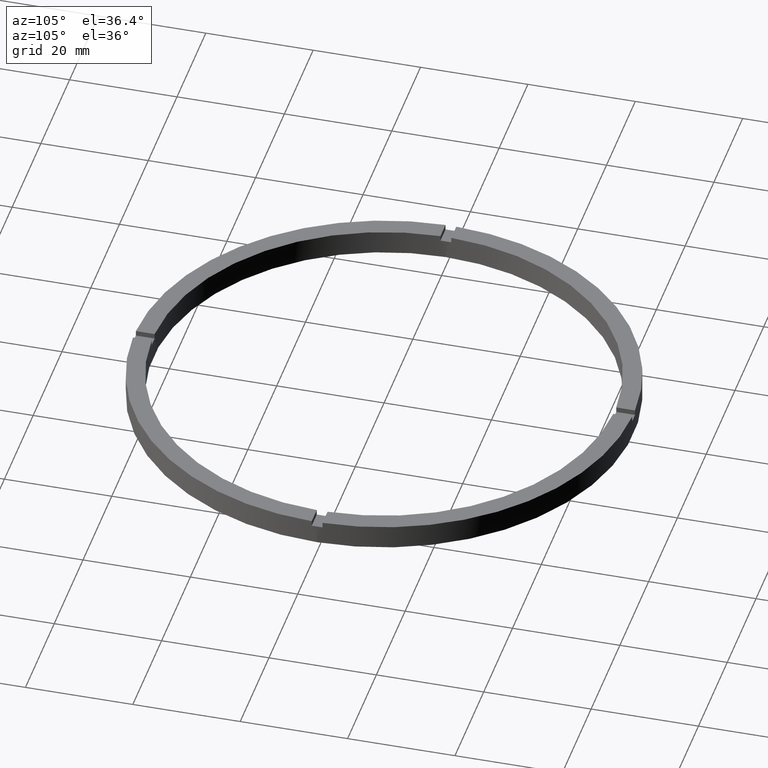
[diagram: clean part render]
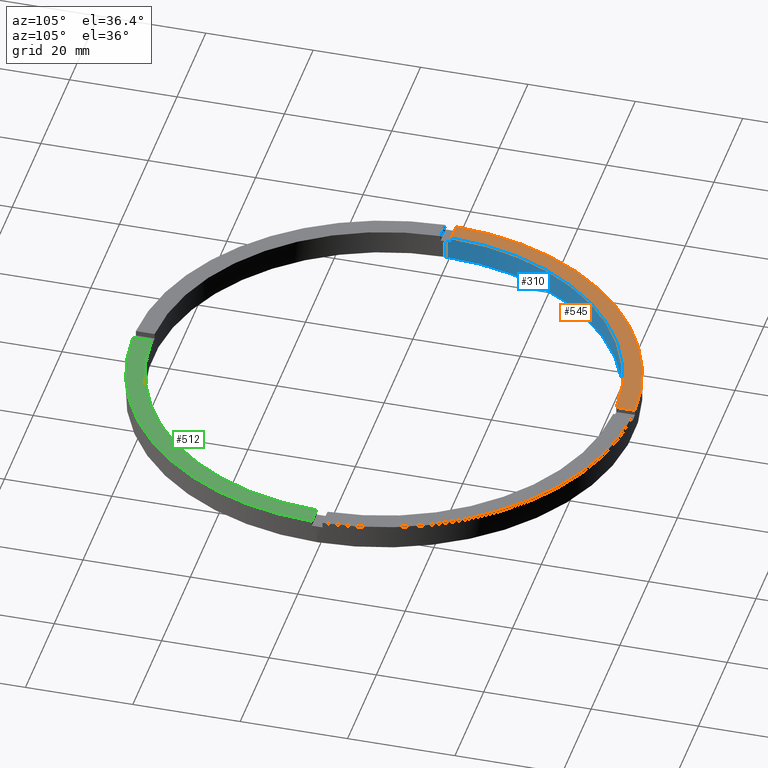
[diagram: same view with three faces highlighted in distinct colors, each labeled with its STEP entity id]
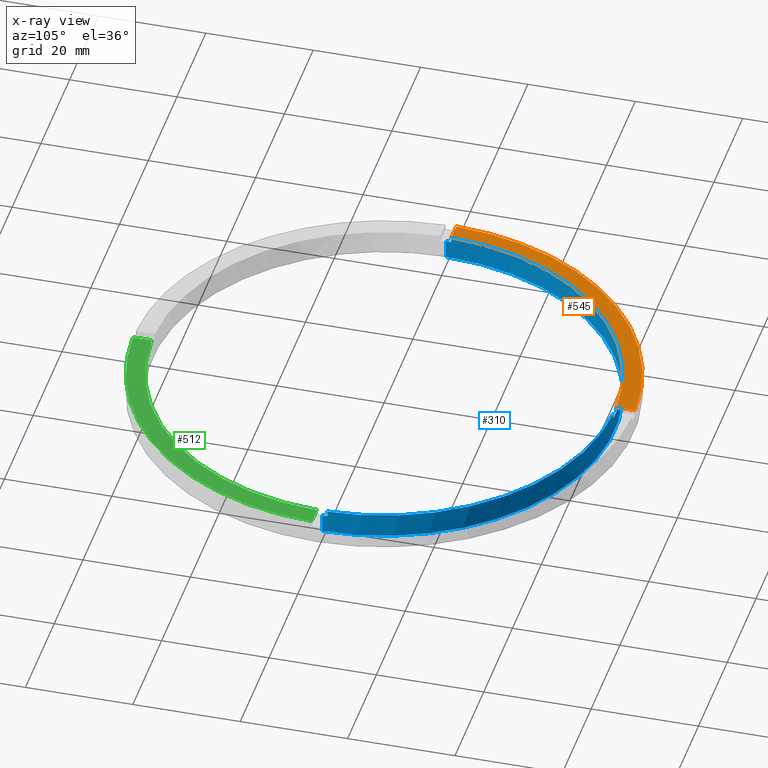
[diagram: x-ray of the same camera — body ghosted, the three highlighted faces saturated]
A machine part, auxiliary view with three faces highlighted in distinct colors.
The next image is the same camera in x-ray (body ghosted, the three faces saturated) — at least one of them is partly hidden behind the body in this view.
Their STEP definitions:

[orange] entity #545 — the highlighted planar face has unit normal (0, 0, 1).
#16 = AXIS2_PLACEMENT_3D ( 'NONE', #166, #415, #495 ) ;
#90 = DIRECTION ( 'NONE',  ( -0.000000000000000000, -1.000000000000000000, -0.000000000000000000 ) ) ;
#99 = DIRECTION ( 'NONE',  ( 0.000000000000000000, 0.000000000000000000, 1.000000000000000000 ) ) ;
#103 = AXIS2_PLACEMENT_3D ( 'NONE', #241, #99, #760 ) ;
#123 = DIRECTION ( 'NONE',  ( 1.000000000000000000, 0.000000000000000000, 0.000000000000000000 ) ) ;
#126 = CARTESIAN_POINT ( 'NONE',  ( -42.98837052040935447, 0.9999999999999703570, 4.500000000000000000 ) ) ;
#165 = LINE ( 'NONE', #526, #464 ) ;
#166 = CARTESIAN_POINT ( 'NONE',  ( 0.000000000000000000, 0.000000000000000000, 4.500000000000000000 ) ) ;
#167 = VECTOR ( 'NONE', #90, 1000.000000000000000 ) ;
#196 = EDGE_LOOP ( 'NONE', ( #426, #229, #233, #421 ) ) ;
#201 = VERTEX_POINT ( 'NONE', #286 ) ;
#226 = CARTESIAN_POINT ( 'NONE',  ( -1.000000000000026423, 36.50000000000000000, 4.500000000000000000 ) ) ;
#229 = ORIENTED_EDGE ( 'NONE', *, *, #305, .T. ) ;
#233 = ORIENTED_EDGE ( 'NONE', *, *, #746, .F. ) ;
#241 = CARTESIAN_POINT ( 'NONE',  ( 0.000000000000000000, 0.000000000000000000, 4.500000000000000000 ) ) ;
#286 = CARTESIAN_POINT ( 'NONE',  ( -1.000000000000026423, 46.48924606831132422, 4.500000000000000000 ) ) ;
#305 = EDGE_CURVE ( 'NONE', #201, #739, #578, .T. ) ;
#312 = CARTESIAN_POINT ( 'NONE',  ( 0.000000000000000000, 0.000000000000000000, 4.500000000000000000 ) ) ;
#324 = CARTESIAN_POINT ( 'NONE',  ( -46.48924606831132422, 0.9999999999999696909, 4.500000000000000000 ) ) ;
#337 = EDGE_CURVE ( 'NONE', #681, #403, #583, .T. ) ;
#358 = AXIS2_PLACEMENT_3D ( 'NONE', #312, #729, #123 ) ;
#362 = FACE_OUTER_BOUND ( 'NONE', #196, .T. ) ;
#375 = DIRECTION ( 'NONE',  ( -1.000000000000000000, -1.951563910473907735E-16, 0.000000000000000000 ) ) ;
#385 = CARTESIAN_POINT ( 'NONE',  ( -1.000000000000026423, 42.98837052040935447, 4.500000000000000000 ) ) ;
#403 = VERTEX_POINT ( 'NONE', #126 ) ;
#415 = DIRECTION ( 'NONE',  ( 0.000000000000000000, 0.000000000000000000, 1.000000000000000000 ) ) ;
#421 = ORIENTED_EDGE ( 'NONE', *, *, #337, .F. ) ;
#426 = ORIENTED_EDGE ( 'NONE', *, *, #616, .F. ) ;
#432 = LINE ( 'NONE', #226, #167 ) ;
#464 = VECTOR ( 'NONE', #375, 1000.000000000000000 ) ;
#487 = PLANE ( 'NONE',  #103 ) ;
#495 = DIRECTION ( 'NONE',  ( 1.000000000000000000, 0.000000000000000000, 0.000000000000000000 ) ) ;
#526 = CARTESIAN_POINT ( 'NONE',  ( -36.50000000000018474, 0.9999999999999715783, 4.500000000000000000 ) ) ;
#545 = ADVANCED_FACE ( 'NONE', ( #362 ), #487, .T. ) ;
#578 = CIRCLE ( 'NONE', #358, 46.50000000000000000 ) ;
#583 = CIRCLE ( 'NONE', #16, 43.00000000000000000 ) ;
#616 = EDGE_CURVE ( 'NONE', #201, #681, #432, .T. ) ;
#681 = VERTEX_POINT ( 'NONE', #385 ) ;
#729 = DIRECTION ( 'NONE',  ( 0.000000000000000000, 0.000000000000000000, 1.000000000000000000 ) ) ;
#739 = VERTEX_POINT ( 'NONE', #324 ) ;
#746 = EDGE_CURVE ( 'NONE', #403, #739, #165, .T. ) ;
#760 = DIRECTION ( 'NONE',  ( 1.000000000000000000, 0.000000000000000000, -0.000000000000000000 ) ) ;

[blue] entity #310 — the highlighted cylindrical surface (partial cylindrical patch) has radius 43 mm, axis along (-0, -0, -1).
#4 = EDGE_CURVE ( 'NONE', #382, #200, #763, .T. ) ;
#5 = DIRECTION ( 'NONE',  ( 0.000000000000000000, 0.000000000000000000, 1.000000000000000000 ) ) ;
#7 = AXIS2_PLACEMENT_3D ( 'NONE', #27, #577, #335 ) ;
#12 = DIRECTION ( 'NONE',  ( -0.000000000000000000, -0.000000000000000000, -1.000000000000000000 ) ) ;
#16 = AXIS2_PLACEMENT_3D ( 'NONE', #166, #415, #495 ) ;
#27 = CARTESIAN_POINT ( 'NONE',  ( 0.000000000000000000, 0.000000000000000000, 3.499999999999999556 ) ) ;
#31 = CARTESIAN_POINT ( 'NONE',  ( 42.98837052040935447, 0.9999999999998439026, 3.499999999999999556 ) ) ;
#34 = DIRECTION ( 'NONE',  ( -0.000000000000000000, -0.000000000000000000, -1.000000000000000000 ) ) ;
#54 = DIRECTION ( 'NONE',  ( -1.000000000000000000, 0.000000000000000000, 0.000000000000000000 ) ) ;
#57 = EDGE_CURVE ( 'NONE', #193, #403, #524, .T. ) ;
#62 = DIRECTION ( 'NONE',  ( -0.000000000000000000, -0.000000000000000000, -1.000000000000000000 ) ) ;
#66 = FACE_OUTER_BOUND ( 'NONE', #675, .T. ) ;
#74 = EDGE_CURVE ( 'NONE', #212, #748, #764, .T. ) ;
#75 = DIRECTION ( 'NONE',  ( 0.000000000000000000, 0.000000000000000000, 1.000000000000000000 ) ) ;
#79 = EDGE_CURVE ( 'NONE', #622, #749, #759, .T. ) ;
#88 = CARTESIAN_POINT ( 'NONE',  ( 0.9999999999999735767, 42.98837052040935447, 4.500000000000000000 ) ) ;
#104 = CARTESIAN_POINT ( 'NONE',  ( -43.00000000000000000, 0.000000000000000000, 4.500000000000000000 ) ) ;
#110 = ORIENTED_EDGE ( 'NONE', *, *, #57, .F. ) ;
#124 = DIRECTION ( 'NONE',  ( 0.000000000000000000, -0.000000000000000000, 1.000000000000000000 ) ) ;
#126 = CARTESIAN_POINT ( 'NONE',  ( -42.98837052040935447, 0.9999999999999703570, 4.500000000000000000 ) ) ;
#138 = DIRECTION ( 'NONE',  ( -0.000000000000000000, -0.000000000000000000, -1.000000000000000000 ) ) ;
#141 = ORIENTED_EDGE ( 'NONE', *, *, #618, .T. ) ;
#150 = EDGE_CURVE ( 'NONE', #193, #382, #514, .T. ) ;
#151 = CARTESIAN_POINT ( 'NONE',  ( 0.9999999999999735767, 42.98837052040935447, 3.499999999999999556 ) ) ;
#162 = EDGE_CURVE ( 'NONE', #190, #749, #782, .T. ) ;
#166 = CARTESIAN_POINT ( 'NONE',  ( 0.000000000000000000, 0.000000000000000000, 4.500000000000000000 ) ) ;
#183 = CARTESIAN_POINT ( 'NONE',  ( 0.000000000000000000, 0.000000000000000000, 4.500000000000000000 ) ) ;
#190 = VERTEX_POINT ( 'NONE', #389 ) ;
#193 = VERTEX_POINT ( 'NONE', #228 ) ;
#200 = VERTEX_POINT ( 'NONE', #443 ) ;
#212 = VERTEX_POINT ( 'NONE', #151 ) ;
#228 = CARTESIAN_POINT ( 'NONE',  ( -42.98837052040935447, 0.9999999999999703570, 3.499999999999999556 ) ) ;
#255 = VECTOR ( 'NONE', #62, 1000.000000000000000 ) ;
#273 = CARTESIAN_POINT ( 'NONE',  ( 43.00000000000000000, 5.265981236333618470E-15, 4.500000000000000000 ) ) ;
#301 = CARTESIAN_POINT ( 'NONE',  ( 0.9999999999999735767, 42.98837052040935447, 4.500000000000000000 ) ) ;
#307 = CARTESIAN_POINT ( 'NONE',  ( -42.98837052040935447, 0.9999999999999703570, 4.500000000000000000 ) ) ;
#310 = ADVANCED_FACE ( 'NONE', ( #66 ), #317, .F. ) ;
#317 = CYLINDRICAL_SURFACE ( 'NONE', #692, 43.00000000000000000 ) ;
#334 = VECTOR ( 'NONE', #367, 1000.000000000000000 ) ;
#335 = DIRECTION ( 'NONE',  ( 1.000000000000000000, 0.000000000000000000, 0.000000000000000000 ) ) ;
#337 = EDGE_CURVE ( 'NONE', #681, #403, #583, .T. ) ;
#348 = CARTESIAN_POINT ( 'NONE',  ( -43.00000000000000000, 0.000000000000000000, 3.499999999999999556 ) ) ;
#353 = CARTESIAN_POINT ( 'NONE',  ( 0.000000000000000000, 0.000000000000000000, 3.499999999999999556 ) ) ;
#367 = DIRECTION ( 'NONE',  ( -0.000000000000000000, -0.000000000000000000, -1.000000000000000000 ) ) ;
#374 = DIRECTION ( 'NONE',  ( 0.000000000000000000, 0.000000000000000000, 1.000000000000000000 ) ) ;
#381 = CARTESIAN_POINT ( 'NONE',  ( 0.000000000000000000, 0.000000000000000000, 0.000000000000000000 ) ) ;
#382 = VERTEX_POINT ( 'NONE', #348 ) ;
#384 = ORIENTED_EDGE ( 'NONE', *, *, #484, .F. ) ;
#385 = CARTESIAN_POINT ( 'NONE',  ( -1.000000000000026423, 42.98837052040935447, 4.500000000000000000 ) ) ;
#389 = CARTESIAN_POINT ( 'NONE',  ( 42.98837052040935447, 0.9999999999998439026, 4.500000000000000000 ) ) ;
#401 = ORIENTED_EDGE ( 'NONE', *, *, #541, .F. ) ;
#402 = ORIENTED_EDGE ( 'NONE', *, *, #656, .F. ) ;
#403 = VERTEX_POINT ( 'NONE', #126 ) ;
#415 = DIRECTION ( 'NONE',  ( 0.000000000000000000, 0.000000000000000000, 1.000000000000000000 ) ) ;
#420 = DIRECTION ( 'NONE',  ( 1.000000000000000000, 0.000000000000000000, 0.000000000000000000 ) ) ;
#422 = AXIS2_PLACEMENT_3D ( 'NONE', #381, #446, #456 ) ;
#435 = CIRCLE ( 'NONE', #422, 43.00000000000000000 ) ;
#440 = ORIENTED_EDGE ( 'NONE', *, *, #4, .T. ) ;
#443 = CARTESIAN_POINT ( 'NONE',  ( -43.00000000000000000, 0.000000000000000000, 0.000000000000000000 ) ) ;
#446 = DIRECTION ( 'NONE',  ( 0.000000000000000000, 0.000000000000000000, 1.000000000000000000 ) ) ;
#456 = DIRECTION ( 'NONE',  ( 1.000000000000000000, 0.000000000000000000, 0.000000000000000000 ) ) ;
#459 = CARTESIAN_POINT ( 'NONE',  ( -1.000000000000026423, 42.98837052040935447, 4.500000000000000000 ) ) ;
#467 = ORIENTED_EDGE ( 'NONE', *, *, #337, .T. ) ;
#470 = AXIS2_PLACEMENT_3D ( 'NONE', #353, #124, #420 ) ;
#475 = LINE ( 'NONE', #273, #482 ) ;
#478 = ORIENTED_EDGE ( 'NONE', *, *, #162, .F. ) ;
#479 = CARTESIAN_POINT ( 'NONE',  ( 43.00000000000000000, 5.265981236333618470E-15, 3.499999999999999556 ) ) ;
#482 = VECTOR ( 'NONE', #138, 1000.000000000000000 ) ;
#484 = EDGE_CURVE ( 'NONE', #681, #748, #601, .T. ) ;
#489 = VERTEX_POINT ( 'NONE', #754 ) ;
#495 = DIRECTION ( 'NONE',  ( 1.000000000000000000, 0.000000000000000000, 0.000000000000000000 ) ) ;
#507 = VECTOR ( 'NONE', #34, 1000.000000000000000 ) ;
#514 = CIRCLE ( 'NONE', #7, 43.00000000000000000 ) ;
#524 = LINE ( 'NONE', #307, #755 ) ;
#541 = EDGE_CURVE ( 'NONE', #212, #712, #608, .T. ) ;
#550 = AXIS2_PLACEMENT_3D ( 'NONE', #648, #374, #780 ) ;
#577 = DIRECTION ( 'NONE',  ( 0.000000000000000000, 0.000000000000000000, 1.000000000000000000 ) ) ;
#583 = CIRCLE ( 'NONE', #16, 43.00000000000000000 ) ;
#594 = EDGE_CURVE ( 'NONE', #622, #489, #475, .T. ) ;
#601 = LINE ( 'NONE', #459, #334 ) ;
#608 = LINE ( 'NONE', #301, #634 ) ;
#618 = EDGE_CURVE ( 'NONE', #190, #712, #723, .T. ) ;
#622 = VERTEX_POINT ( 'NONE', #479 ) ;
#626 = CARTESIAN_POINT ( 'NONE',  ( 42.98837052040935447, 0.9999999999998439026, 4.500000000000000000 ) ) ;
#634 = VECTOR ( 'NONE', #5, 1000.000000000000000 ) ;
#642 = ORIENTED_EDGE ( 'NONE', *, *, #150, .T. ) ;
#648 = CARTESIAN_POINT ( 'NONE',  ( 0.000000000000000000, 0.000000000000000000, 4.500000000000000000 ) ) ;
#656 = EDGE_CURVE ( 'NONE', #489, #200, #435, .T. ) ;
#662 = ORIENTED_EDGE ( 'NONE', *, *, #79, .T. ) ;
#667 = CARTESIAN_POINT ( 'NONE',  ( 0.000000000000000000, 0.000000000000000000, 3.499999999999999556 ) ) ;
#675 = EDGE_LOOP ( 'NONE', ( #707, #662, #478, #141, #401, #709, #384, #467, #110, #642, #440, #402 ) ) ;
#676 = AXIS2_PLACEMENT_3D ( 'NONE', #667, #769, #705 ) ;
#681 = VERTEX_POINT ( 'NONE', #385 ) ;
#692 = AXIS2_PLACEMENT_3D ( 'NONE', #183, #12, #54 ) ;
#705 = DIRECTION ( 'NONE',  ( 1.000000000000000000, 0.000000000000000000, 0.000000000000000000 ) ) ;
#707 = ORIENTED_EDGE ( 'NONE', *, *, #594, .F. ) ;
#709 = ORIENTED_EDGE ( 'NONE', *, *, #74, .T. ) ;
#712 = VERTEX_POINT ( 'NONE', #88 ) ;
#723 = CIRCLE ( 'NONE', #550, 43.00000000000000000 ) ;
#748 = VERTEX_POINT ( 'NONE', #761 ) ;
#749 = VERTEX_POINT ( 'NONE', #31 ) ;
#754 = CARTESIAN_POINT ( 'NONE',  ( 43.00000000000000000, 5.265981236333618470E-15, 0.000000000000000000 ) ) ;
#755 = VECTOR ( 'NONE', #75, 1000.000000000000000 ) ;
#759 = CIRCLE ( 'NONE', #676, 43.00000000000000000 ) ;
#761 = CARTESIAN_POINT ( 'NONE',  ( -1.000000000000026423, 42.98837052040935447, 3.499999999999999556 ) ) ;
#763 = LINE ( 'NONE', #104, #255 ) ;
#764 = CIRCLE ( 'NONE', #470, 43.00000000000000000 ) ;
#769 = DIRECTION ( 'NONE',  ( 0.000000000000000000, 0.000000000000000000, 1.000000000000000000 ) ) ;
#780 = DIRECTION ( 'NONE',  ( 1.000000000000000000, 0.000000000000000000, 0.000000000000000000 ) ) ;
#782 = LINE ( 'NONE', #626, #507 ) ;

[green] entity #512 — the highlighted planar face has unit normal (0, 0, 1).
#72 = CIRCLE ( 'NONE', #772, 46.50000000000000000 ) ;
#191 = AXIS2_PLACEMENT_3D ( 'NONE', #412, #493, #404 ) ;
#265 = ORIENTED_EDGE ( 'NONE', *, *, #399, .T. ) ;
#277 = DIRECTION ( 'NONE',  ( -1.301042606982605074E-16, 1.000000000000000000, -0.000000000000000000 ) ) ;
#279 = CARTESIAN_POINT ( 'NONE',  ( 0.9999999999998423483, -46.48924606831132422, 4.500000000000000000 ) ) ;
#309 = EDGE_CURVE ( 'NONE', #413, #411, #336, .T. ) ;
#336 = LINE ( 'NONE', #544, #595 ) ;
#383 = AXIS2_PLACEMENT_3D ( 'NONE', #529, #580, #628 ) ;
#394 = ORIENTED_EDGE ( 'NONE', *, *, #309, .F. ) ;
#399 = EDGE_CURVE ( 'NONE', #715, #411, #72, .T. ) ;
#404 = DIRECTION ( 'NONE',  ( 1.000000000000000000, 0.000000000000000000, -0.000000000000000000 ) ) ;
#411 = VERTEX_POINT ( 'NONE', #535 ) ;
#412 = CARTESIAN_POINT ( 'NONE',  ( 0.000000000000000000, 0.000000000000000000, 4.500000000000000000 ) ) ;
#413 = VERTEX_POINT ( 'NONE', #680 ) ;
#428 = EDGE_CURVE ( 'NONE', #715, #728, #598, .T. ) ;
#493 = DIRECTION ( 'NONE',  ( 0.000000000000000000, 0.000000000000000000, 1.000000000000000000 ) ) ;
#512 = ADVANCED_FACE ( 'NONE', ( #629 ), #543, .T. ) ;
#529 = CARTESIAN_POINT ( 'NONE',  ( 0.000000000000000000, 0.000000000000000000, 4.500000000000000000 ) ) ;
#535 = CARTESIAN_POINT ( 'NONE',  ( 46.48924606831132422, -1.000000000000155875, 4.500000000000000000 ) ) ;
#543 = PLANE ( 'NONE',  #191 ) ;
#544 = CARTESIAN_POINT ( 'NONE',  ( 36.49999999999999289, -1.000000000000156541, 4.500000000000000000 ) ) ;
#561 = CARTESIAN_POINT ( 'NONE',  ( 0.000000000000000000, 0.000000000000000000, 4.500000000000000000 ) ) ;
#576 = VECTOR ( 'NONE', #277, 1000.000000000000000 ) ;
#580 = DIRECTION ( 'NONE',  ( 0.000000000000000000, 0.000000000000000000, 1.000000000000000000 ) ) ;
#595 = VECTOR ( 'NONE', #674, 1000.000000000000000 ) ;
#598 = LINE ( 'NONE', #640, #576 ) ;
#612 = DIRECTION ( 'NONE',  ( 0.000000000000000000, 0.000000000000000000, 1.000000000000000000 ) ) ;
#625 = CARTESIAN_POINT ( 'NONE',  ( 0.9999999999998419042, -42.98837052040935447, 4.500000000000000000 ) ) ;
#628 = DIRECTION ( 'NONE',  ( 1.000000000000000000, 0.000000000000000000, 0.000000000000000000 ) ) ;
#629 = FACE_OUTER_BOUND ( 'NONE', #711, .T. ) ;
#640 = CARTESIAN_POINT ( 'NONE',  ( 0.9999999999998411271, -36.50000000000017764, 4.500000000000000000 ) ) ;
#674 = DIRECTION ( 'NONE',  ( 1.000000000000000000, 6.505213034913025371E-17, 0.000000000000000000 ) ) ;
#680 = CARTESIAN_POINT ( 'NONE',  ( 42.98837052040934736, -1.000000000000156097, 4.500000000000000000 ) ) ;
#683 = EDGE_CURVE ( 'NONE', #728, #413, #716, .T. ) ;
#694 = ORIENTED_EDGE ( 'NONE', *, *, #428, .F. ) ;
#711 = EDGE_LOOP ( 'NONE', ( #394, #745, #694, #265 ) ) ;
#715 = VERTEX_POINT ( 'NONE', #279 ) ;
#716 = CIRCLE ( 'NONE', #383, 43.00000000000000000 ) ;
#722 = DIRECTION ( 'NONE',  ( 1.000000000000000000, 0.000000000000000000, 0.000000000000000000 ) ) ;
#728 = VERTEX_POINT ( 'NONE', #625 ) ;
#745 = ORIENTED_EDGE ( 'NONE', *, *, #683, .F. ) ;
#772 = AXIS2_PLACEMENT_3D ( 'NONE', #561, #612, #722 ) ;